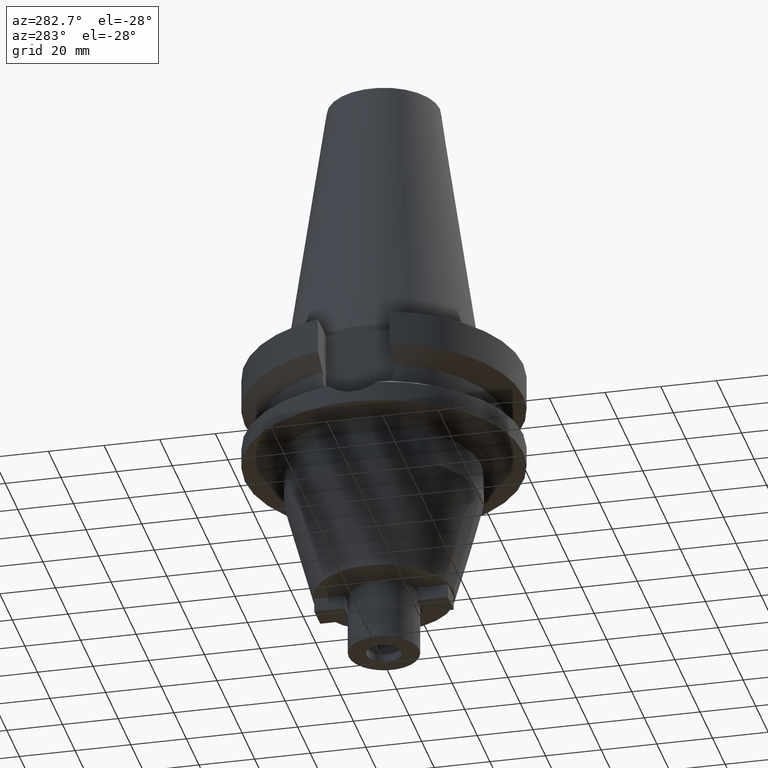
[diagram: clean part render]
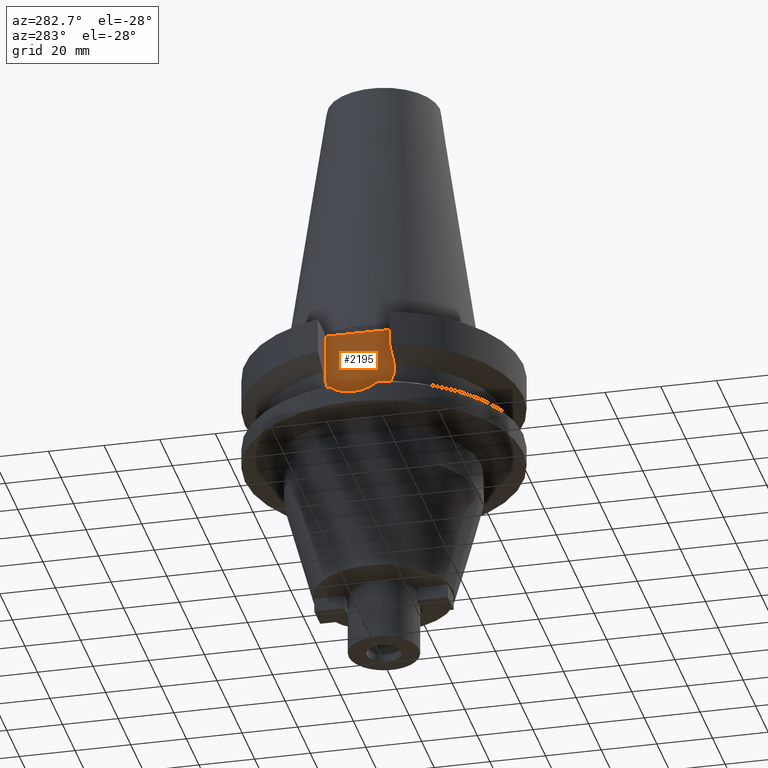
[diagram: same view with one face highlighted and labeled with its STEP entity id]
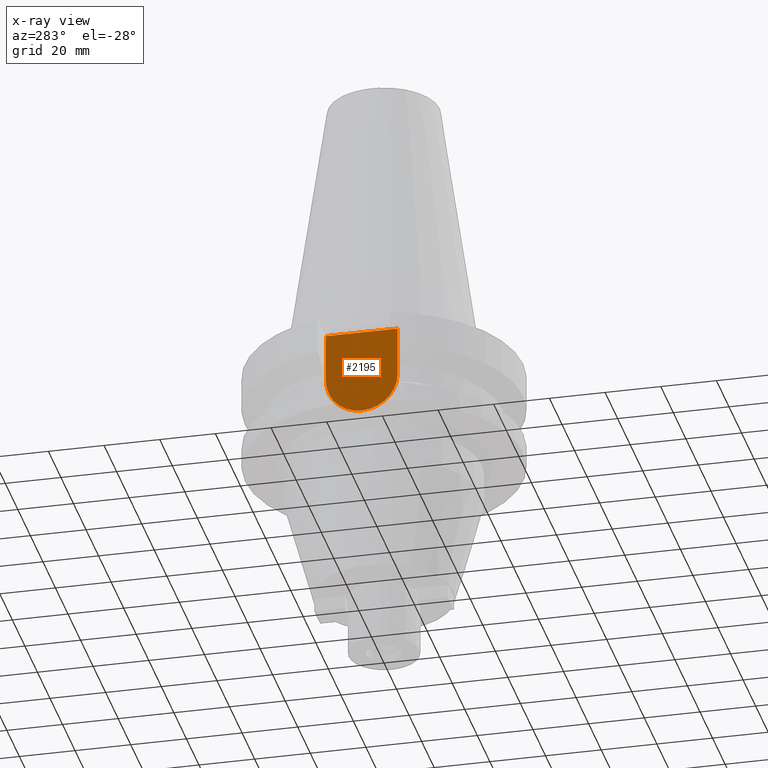
[diagram: x-ray of the same camera — body ghosted, the highlighted face saturated]
A machine part, auxiliary view. The second image highlights one B-rep face of the part: STEP entity #2195.
The next image is the same camera in x-ray: the body ghosted, the highlighted face saturated — about 0% of this face is hidden behind the body in this view.
In plain terms, the highlighted planar face has unit normal (-1, 0, 0).
Its self-contained STEP definition (entity closure, byte-faithful):
#799=DIRECTION('',(0.E0,1.E0,0.E0));
#800=VECTOR('',#799,2.57E1);
#801=CARTESIAN_POINT('',(-3.54E1,-1.285E1,-3.E0));
#802=LINE('',#801,#800);
#875=DIRECTION('',(0.E0,0.E0,-1.E0));
#876=VECTOR('',#875,1.815E1);
#877=CARTESIAN_POINT('',(-3.54E1,-1.285E1,-3.E0));
#878=LINE('',#877,#876);
#882=CARTESIAN_POINT('',(-3.54E1,0.E0,-2.115E1));
#883=DIRECTION('',(1.E0,0.E0,0.E0));
#884=DIRECTION('',(0.E0,-1.E0,0.E0));
#885=AXIS2_PLACEMENT_3D('',#882,#883,#884);
#890=CARTESIAN_POINT('',(-3.54E1,0.E0,-2.115E1));
#891=DIRECTION('',(1.E0,0.E0,0.E0));
#892=DIRECTION('',(0.E0,0.E0,-1.E0));
#893=AXIS2_PLACEMENT_3D('',#890,#891,#892);
#898=DIRECTION('',(0.E0,0.E0,1.E0));
#899=VECTOR('',#898,1.815E1);
#900=CARTESIAN_POINT('',(-3.54E1,1.285E1,-2.115E1));
#901=LINE('',#900,#899);
#1411=CARTESIAN_POINT('',(-3.54E1,1.285E1,-2.115E1));
#1412=VERTEX_POINT('',#1411);
#1413=CARTESIAN_POINT('',(-3.54E1,0.E0,-3.4E1));
#1414=VERTEX_POINT('',#1413);
#1415=CARTESIAN_POINT('',(-3.54E1,-1.285E1,-2.115E1));
#1416=VERTEX_POINT('',#1415);
#1431=CARTESIAN_POINT('',(-3.54E1,-1.285E1,-3.E0));
#1432=VERTEX_POINT('',#1431);
#1437=CARTESIAN_POINT('',(-3.54E1,1.285E1,-3.E0));
#1438=VERTEX_POINT('',#1437);
#2181=CARTESIAN_POINT('',(-3.54E1,0.E0,0.E0));
#2182=DIRECTION('',(-1.E0,0.E0,0.E0));
#2183=DIRECTION('',(0.E0,0.E0,-1.E0));
#2184=AXIS2_PLACEMENT_3D('',#2181,#2182,#2183);
#2185=PLANE('',#2184);
#2186=ORIENTED_EDGE('',*,*,#2154,.F.);
#2188=ORIENTED_EDGE('',*,*,#2187,.T.);
#2189=ORIENTED_EDGE('',*,*,#2056,.T.);
#2190=ORIENTED_EDGE('',*,*,#2054,.T.);
#2192=ORIENTED_EDGE('',*,*,#2191,.T.);
#2193=EDGE_LOOP('',(#2186,#2188,#2189,#2190,#2192));
#2194=FACE_OUTER_BOUND('',#2193,.F.);
#886=CIRCLE('',#885,1.285E1);
#894=CIRCLE('',#893,1.285E1);
#2054=EDGE_CURVE('',#1414,#1412,#894,.T.);
#2056=EDGE_CURVE('',#1416,#1414,#886,.T.);
#2154=EDGE_CURVE('',#1432,#1438,#802,.T.);
#2187=EDGE_CURVE('',#1432,#1416,#878,.T.);
#2191=EDGE_CURVE('',#1412,#1438,#901,.T.);
#2195=ADVANCED_FACE('',(#2194),#2185,.T.);